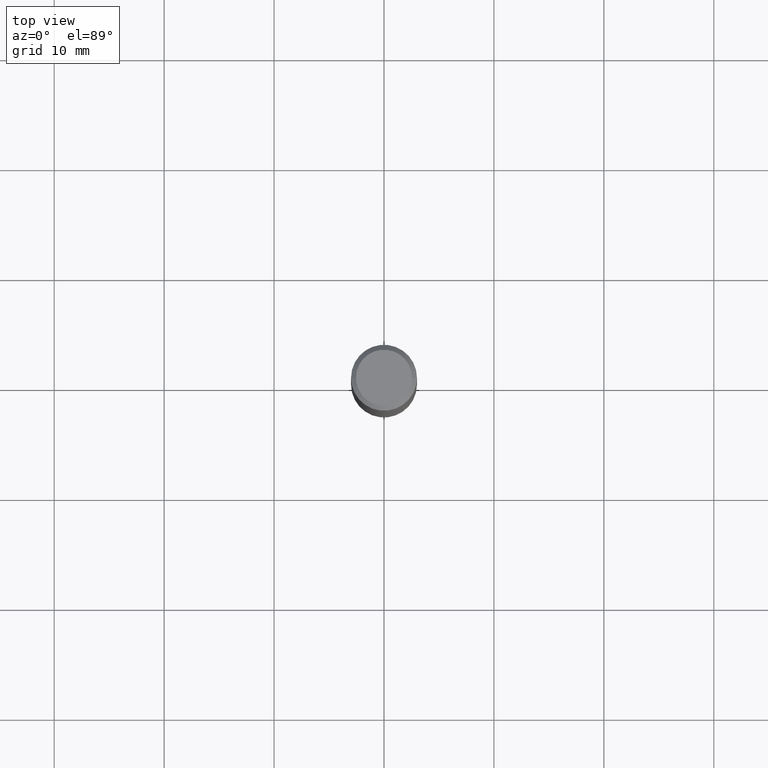
[diagram: clean part render]
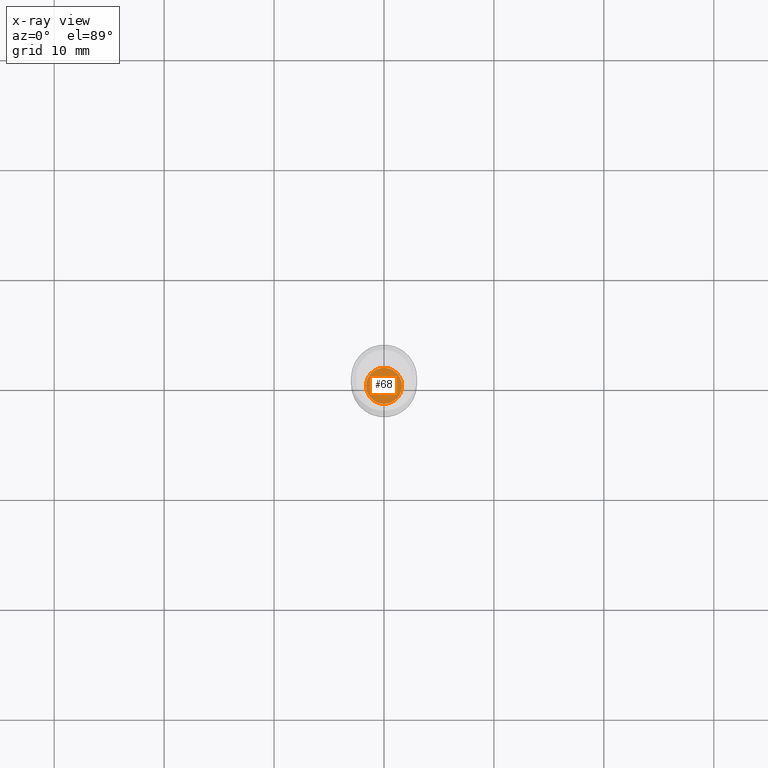
[diagram: x-ray — body ghosted, one internal face saturated and labeled with its STEP entity id]
A machine part, top view, then the same camera in x-ray: the body is ghosted and one INTERNAL B-rep face — a face not visible from any outside direction — is saturated and labeled: STEP entity #68.
In plain terms, the highlighted planar face has unit normal (-0, 0, 1).
Its self-contained STEP definition (entity closure, byte-faithful):
#30 = AXIS2_PLACEMENT_3D ( 'NONE', #472, #124, #325 ) ;
#65 = DIRECTION ( 'NONE',  ( 1.000000000000000000, -6.982962677686259611E-15, 0.000000000000000000 ) ) ;
#68 = ADVANCED_FACE ( 'NONE', ( #92 ), #357, .F. ) ;
#92 = FACE_OUTER_BOUND ( 'NONE', #226, .T. ) ;
#115 = EDGE_CURVE ( 'NONE', #205, #135, #244, .T. ) ;
#124 = DIRECTION ( 'NONE',  ( -2.445468806185136597E-29, 3.491481338843145583E-15, 1.000000000000000000 ) ) ;
#135 = VERTEX_POINT ( 'NONE', #433 ) ;
#140 = DIRECTION ( 'NONE',  ( -2.445468806185136597E-29, 3.491481338843145583E-15, 1.000000000000000000 ) ) ;
#190 = ORIENTED_EDGE ( 'NONE', *, *, #115, .F. ) ;
#196 = AXIS2_PLACEMENT_3D ( 'NONE', #481, #140, #65 ) ;
#205 = VERTEX_POINT ( 'NONE', #336 ) ;
#213 = DIRECTION ( 'NONE',  ( -2.438088387897960049E-29, 3.491481338843145188E-15, 1.000000000000000000 ) ) ;
#226 = EDGE_LOOP ( 'NONE', ( #190, #449 ) ) ;
#239 = DIRECTION ( 'NONE',  ( 1.000000000000000000, -6.982962677686265922E-15, 4.876176775795935793E-29 ) ) ;
#244 = CIRCLE ( 'NONE', #30, 0.06444999999999999341 ) ;
#276 = EDGE_CURVE ( 'NONE', #135, #205, #313, .T. ) ;
#313 = CIRCLE ( 'NONE', #196, 0.06444999999999999341 ) ;
#325 = DIRECTION ( 'NONE',  ( 1.000000000000000000, -6.982962677686259611E-15, 0.000000000000000000 ) ) ;
#328 = CARTESIAN_POINT ( 'NONE',  ( 4.138955954468343780E-29, -5.909332165992023872E-15, -1.692500000000000115 ) ) ;
#336 = CARTESIAN_POINT ( 'NONE',  ( 0.06444999999999999341, -6.359384110568903269E-15, -1.692500000000000115 ) ) ;
#357 = PLANE ( 'NONE',  #442 ) ;
#433 = CARTESIAN_POINT ( 'NONE',  ( -0.06444999999999999341, -5.448738145620528838E-15, -1.692500000000000115 ) ) ;
#442 = AXIS2_PLACEMENT_3D ( 'NONE', #328, #213, #239 ) ;
#449 = ORIENTED_EDGE ( 'NONE', *, *, #276, .F. ) ;
#472 = CARTESIAN_POINT ( 'NONE',  ( 4.138955954468343780E-29, -5.909332165992023872E-15, -1.692500000000000115 ) ) ;
#481 = CARTESIAN_POINT ( 'NONE',  ( 4.138955954468343780E-29, -5.909332165992023872E-15, -1.692500000000000115 ) ) ;